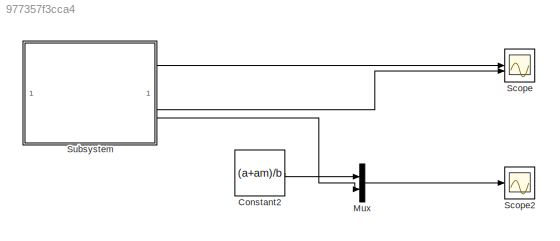
MODEL slx_977357f3cca4
KIND model
CONFIG AbsTol = auto
CONFIG EnableMultiTasking = off
CONFIG FixedStep = auto
CONFIG MaxStep = auto
CONFIG MinStep = auto
CONFIG RelTol = 1e-3
CONFIG SampleTimeConstraint = Unconstrained
CONFIG SolverName = VariableStepAuto
CONFIG StartTime = 0.0
CONFIG StopTime = 5.0
BLOCK [Constant] Constant2
  Value = (a+am)/b
BLOCK [Mux] Mux
  DisplayOption = bar
  Inputs = 2
BLOCK [Scope] Scope
  Floating = off
  NumInputPorts = 2
  ScopeSpecificationString = Simulink.scopes.TimeScopeBlockCfg('CurrentConfiguration', extmgr.ConfigurationSet(extmgr.Configuration('Core','General UI',true),extmgr.Configuration('Core','Source UI',true),extmgr.Configuration('Sources','WiredSimulink',true),extmgr.Configuration('Visuals','Time Domain',true,'SerializedDisplays',{struct('MinYLimReal','-3.75','MaxYLimReal','33.75','YLabelReal','','MinYLimMag','0.00000','MaxYLimMa...<+2158ch>
BLOCK [Scope] Scope2
  Floating = off
  NumInputPorts = 1
  ScopeSpecificationString = Simulink.scopes.TimeScopeBlockCfg('CurrentConfiguration', extmgr.ConfigurationSet(extmgr.Configuration('Core','General UI',true,'FigureColor',[0 0 0]),extmgr.Configuration('Core','Source UI',true),extmgr.Configuration('Sources','WiredSimulink',true,'DataLoggingVariableName','ScopeData2'),extmgr.Configuration('Visuals','Time Domain',true,'SerializedDisplays',{struct('MinYLimReal','-0.72523','MaxYLi...<+1548ch>
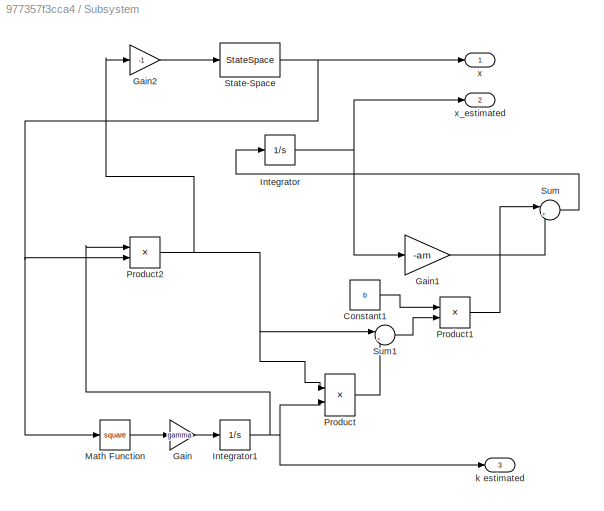
BLOCK [SubSystem] Subsystem
BLOCK [Constant] Subsystem/Constant1
  Value = b
BLOCK [Gain] Subsystem/Gain
  Gain = gamma
BLOCK [Gain] Subsystem/Gain1
  Gain = -am
BLOCK [Gain] Subsystem/Gain2
  Gain = -1
BLOCK [Integrator] Subsystem/Integrator
BLOCK [Integrator] Subsystem/Integrator1
BLOCK [Math] Subsystem/Math Function
  Operator = square
BLOCK [Product] Subsystem/Product
BLOCK [Product] Subsystem/Product1
BLOCK [Product] Subsystem/Product2
BLOCK [StateSpace] Subsystem/State-Space
  A = a
  B = b
  D = 0
  InitialCondition = 20
BLOCK [Sum] Subsystem/Sum
  Inputs = |++
BLOCK [Sum] Subsystem/Sum1
  Inputs = |++
BLOCK [Outport] Subsystem/k estimated
  Port = 3
BLOCK [Outport] Subsystem/x
BLOCK [Outport] Subsystem/x_estimated
  Port = 2
LINE Constant2:1 -> Mux:1
LINE Mux:1 -> Scope2:1
LINE Subsystem/Constant1:1 -> Subsystem/Product1:1
LINE Subsystem/Gain1:1 -> Subsystem/Sum:2
LINE Subsystem/Gain2:1 -> Subsystem/State-Space:1
LINE Subsystem/Gain:1 -> Subsystem/Integrator1:1
NET Subsystem/Integrator1:1 -> Subsystem/Product2:1, Subsystem/Product:2, Subsystem/k estimated:1
NET Subsystem/Integrator:1 -> Subsystem/Gain1:1, Subsystem/x_estimated:1
LINE Subsystem/Math Function:1 -> Subsystem/Gain:1
LINE Subsystem/Product1:1 -> Subsystem/Sum:1
NET Subsystem/Product2:1 -> Subsystem/Gain2:1, Subsystem/Product:1, Subsystem/Sum1:1
LINE Subsystem/Product:1 -> Subsystem/Sum1:2
NET Subsystem/State-Space:1 -> Subsystem/Math Function:1, Subsystem/Product2:2, Subsystem/x:1
LINE Subsystem/Sum1:1 -> Subsystem/Product1:2
LINE Subsystem/Sum:1 -> Subsystem/Integrator:1
LINE Subsystem:1 -> Scope:1
LINE Subsystem:2 -> Scope:2
LINE Subsystem:3 -> Mux:2
note: NET lines group one-source signal fan-out (src -> all destinations, sorted); 1:1 wires keep LINE
